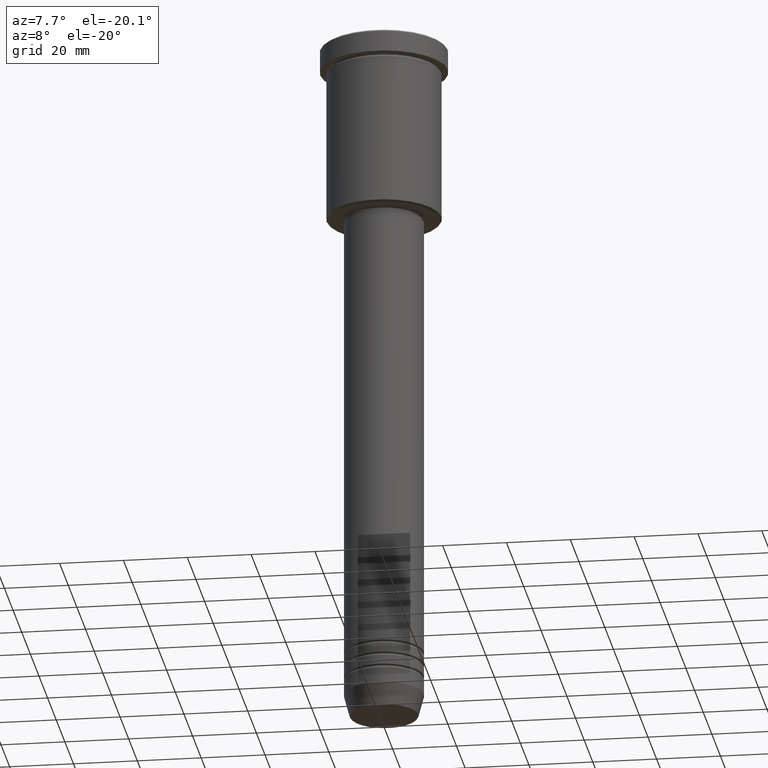
[diagram: clean part render]
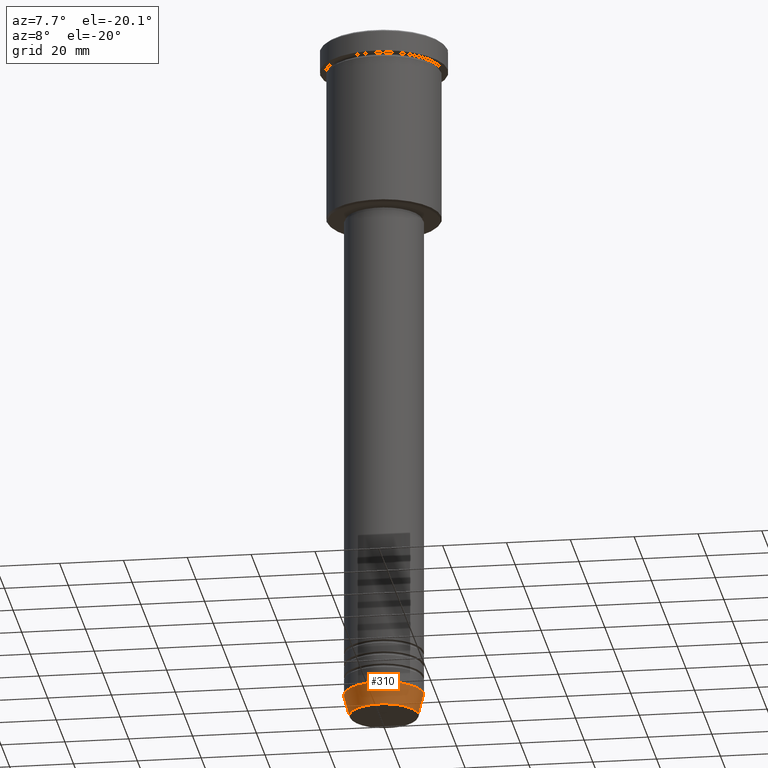
[diagram: same view with one face highlighted and labeled with its STEP entity id]
A machine part, auxiliary view. The second image highlights one B-rep face of the part: STEP entity #310.
In plain terms, the highlighted conical surface has half-angle 15 deg.
Its self-contained STEP definition (entity closure, byte-faithful):
#102 = CARTESIAN_POINT ( 'NONE',  ( 12.50000000000000000, 0.000000000000000000, -213.0000000000000000 ) ) ;
#175 = VECTOR ( 'NONE', #456, 1000.000000000000000 ) ;
#186 = DIRECTION ( 'NONE',  ( -0.000000000000000000, -0.000000000000000000, 1.000000000000000000 ) ) ;
#188 = EDGE_CURVE ( 'NONE', #1030, #607, #255, .T. ) ;
#193 = VERTEX_POINT ( 'NONE', #528 ) ;
#198 = DIRECTION ( 'NONE',  ( 1.000000000000000000, 0.000000000000000000, 0.000000000000000000 ) ) ;
#209 = CIRCLE ( 'NONE', #228, 10.72365507213719127 ) ;
#228 = AXIS2_PLACEMENT_3D ( 'NONE', #997, #186, #810 ) ;
#255 = LINE ( 'NONE', #454, #376 ) ;
#269 = CARTESIAN_POINT ( 'NONE',  ( 0.000000000000000000, 0.000000000000000000, -213.0000000000000000 ) ) ;
#272 = ORIENTED_EDGE ( 'NONE', *, *, #1151, .T. ) ;
#281 = AXIS2_PLACEMENT_3D ( 'NONE', #1171, #359, #713 ) ;
#310 = ADVANCED_FACE ( 'NONE', ( #1105 ), #479, .T. ) ;
#317 = EDGE_LOOP ( 'NONE', ( #497, #327, #272, #648 ) ) ;
#327 = ORIENTED_EDGE ( 'NONE', *, *, #1134, .T. ) ;
#359 = DIRECTION ( 'NONE',  ( -0.000000000000000000, -0.000000000000000000, 1.000000000000000000 ) ) ;
#376 = VECTOR ( 'NONE', #626, 1000.000000000000000 ) ;
#391 = CARTESIAN_POINT ( 'NONE',  ( -12.50000000000000000, 1.530808498934191521E-15, -213.0000000000000000 ) ) ;
#454 = CARTESIAN_POINT ( 'NONE',  ( -12.50000000000000000, 1.530808498934191521E-15, -213.0000000000000000 ) ) ;
#456 = DIRECTION ( 'NONE',  ( 0.2588190451025213501, 0.000000000000000000, 0.9659258262890680902 ) ) ;
#479 = CONICAL_SURFACE ( 'NONE', #1011, 12.50000000000000000, 0.2617993877991500740 ) ;
#497 = ORIENTED_EDGE ( 'NONE', *, *, #188, .F. ) ;
#528 = CARTESIAN_POINT ( 'NONE',  ( 12.50000000000000000, 0.000000000000000000, -213.0000000000000000 ) ) ;
#607 = VERTEX_POINT ( 'NONE', #391 ) ;
#626 = DIRECTION ( 'NONE',  ( -0.2588190451025213501, 3.169619151431772337E-17, 0.9659258262890680902 ) ) ;
#648 = ORIENTED_EDGE ( 'NONE', *, *, #1022, .F. ) ;
#653 = LINE ( 'NONE', #102, #175 ) ;
#713 = DIRECTION ( 'NONE',  ( 1.000000000000000000, 0.000000000000000000, 0.000000000000000000 ) ) ;
#810 = DIRECTION ( 'NONE',  ( 1.000000000000000000, 0.000000000000000000, 0.000000000000000000 ) ) ;
#921 = CARTESIAN_POINT ( 'NONE',  ( 10.72365507213719127, 0.000000000000000000, -219.6294095225512422 ) ) ;
#966 = CARTESIAN_POINT ( 'NONE',  ( -10.72365507213719127, 1.422038742429750516E-15, -219.6294095225512422 ) ) ;
#976 = VERTEX_POINT ( 'NONE', #921 ) ;
#989 = CIRCLE ( 'NONE', #281, 12.50000000000000000 ) ;
#997 = CARTESIAN_POINT ( 'NONE',  ( 0.000000000000000000, 0.000000000000000000, -219.6294095225512422 ) ) ;
#1011 = AXIS2_PLACEMENT_3D ( 'NONE', #269, #1017, #198 ) ;
#1017 = DIRECTION ( 'NONE',  ( -0.000000000000000000, -0.000000000000000000, 1.000000000000000000 ) ) ;
#1022 = EDGE_CURVE ( 'NONE', #607, #193, #989, .T. ) ;
#1030 = VERTEX_POINT ( 'NONE', #966 ) ;
#1105 = FACE_OUTER_BOUND ( 'NONE', #317, .T. ) ;
#1134 = EDGE_CURVE ( 'NONE', #1030, #976, #209, .T. ) ;
#1151 = EDGE_CURVE ( 'NONE', #976, #193, #653, .T. ) ;
#1171 = CARTESIAN_POINT ( 'NONE',  ( 0.000000000000000000, 0.000000000000000000, -213.0000000000000000 ) ) ;